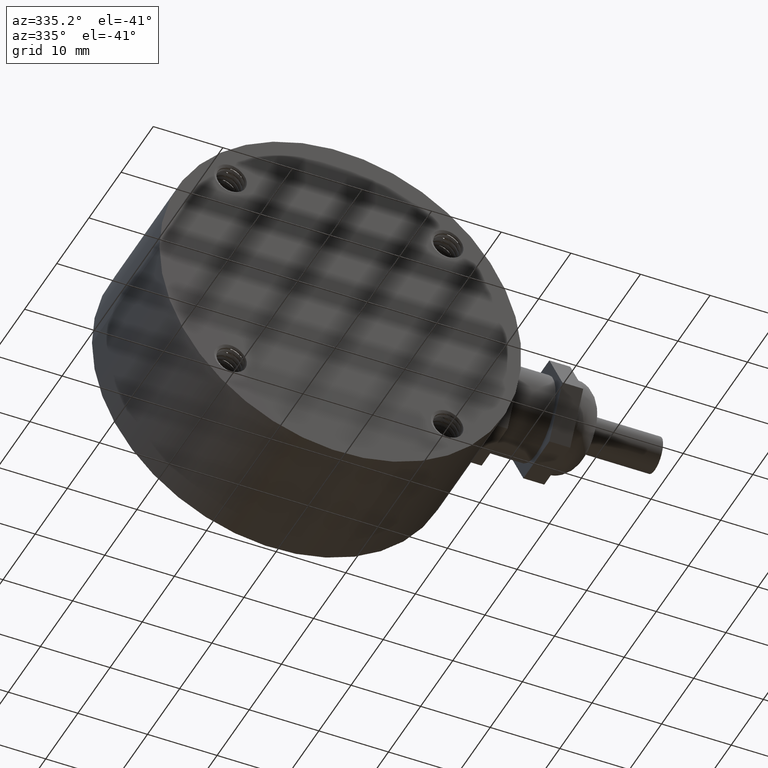
[diagram: clean part render]
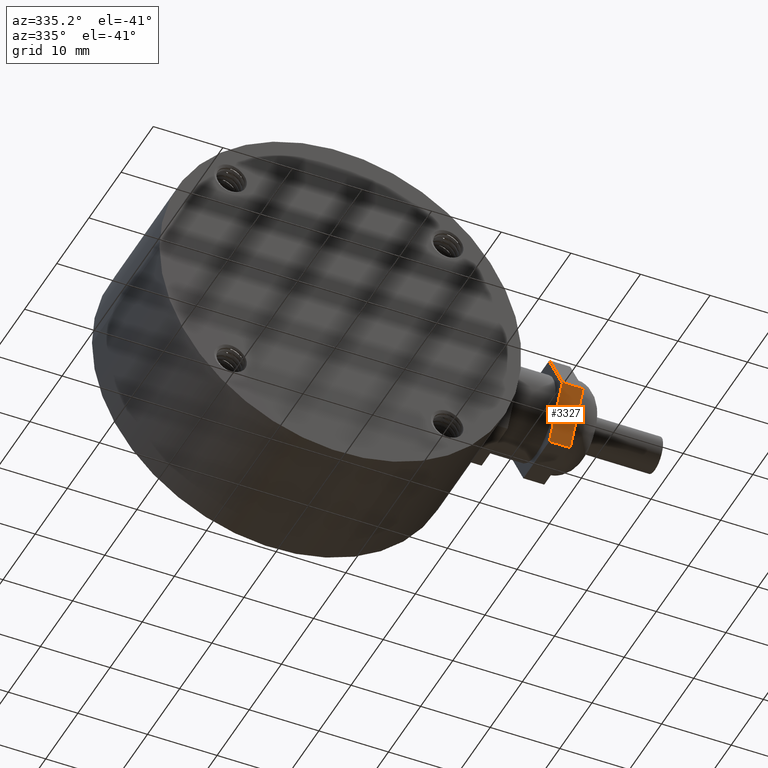
[diagram: same view with one face highlighted and labeled with its STEP entity id]
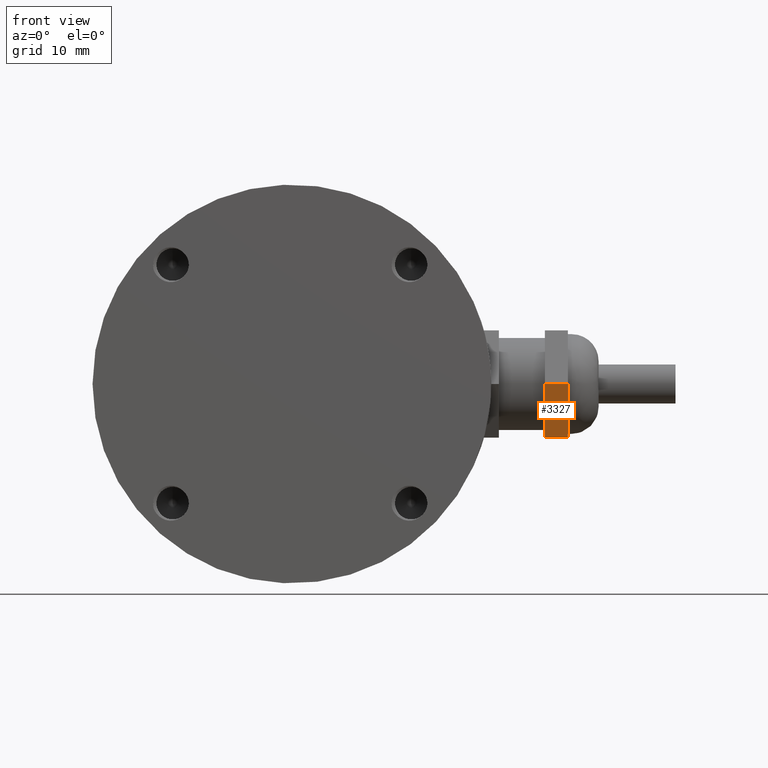
[diagram: same view with one face highlighted and labeled with its STEP entity id]
A machine part, auxiliary view. The second image highlights one B-rep face of the part: STEP entity #3327.
A second angle (front view) of the same face is appended — the face is thin or edge-on in the first view.
In plain terms, the highlighted planar face has unit normal (0, -0.866, -0.5).
Its self-contained STEP definition (entity closure, byte-faithful):
#329=PLANE('',#3564);
#359=FACE_OUTER_BOUND('',#574,.T.);
#574=EDGE_LOOP('',(#2124,#2125,#2126,#2127));
#793=LINE('',#4565,#998);
#798=LINE('',#4577,#1003);
#799=LINE('',#4579,#1004);
#800=LINE('',#4580,#1005);
#998=VECTOR('',#3836,10.);
#1003=VECTOR('',#3845,10.);
#1004=VECTOR('',#3846,10.);
#1005=VECTOR('',#3847,10.);
#1251=VERTEX_POINT('',#4561);
#1253=VERTEX_POINT('',#4564);
#1258=VERTEX_POINT('',#4576);
#1259=VERTEX_POINT('',#4578);
#1584=EDGE_CURVE('',#1253,#1251,#793,.T.);
#1590=EDGE_CURVE('',#1251,#1258,#798,.T.);
#1591=EDGE_CURVE('',#1259,#1258,#799,.T.);
#1592=EDGE_CURVE('',#1253,#1259,#800,.T.);
#2124=ORIENTED_EDGE('',*,*,#1584,.T.);
#2125=ORIENTED_EDGE('',*,*,#1590,.T.);
#2126=ORIENTED_EDGE('',*,*,#1591,.F.);
#2127=ORIENTED_EDGE('',*,*,#1592,.F.);
#3327=ADVANCED_FACE('',(#359),#329,.T.);
#3564=AXIS2_PLACEMENT_3D('',#4575,#3843,#3844);
#3836=DIRECTION('',(0.,0.499999999999999,-0.866025403784439));
#3843=DIRECTION('center_axis',(0.,-0.866025403784439,-0.499999999999999));
#3844=DIRECTION('ref_axis',(0.,0.499999999999999,-0.866025403784439));
#3845=DIRECTION('',(1.,0.,0.));
#3846=DIRECTION('',(0.,0.499999999999999,-0.866025403784439));
#3847=DIRECTION('',(1.,0.,0.));
#4561=CARTESIAN_POINT('',(9.,-4.04145188432739,-7.));
#4564=CARTESIAN_POINT('',(9.,-8.08290376865476,5.55111512312578E-15));
#4565=CARTESIAN_POINT('',(9.,-8.08290376865476,5.55111512312578E-15));
#4575=CARTESIAN_POINT('Origin',(9.,-8.08290376865476,5.55111512312578E-15));
#4576=CARTESIAN_POINT('',(12.,-4.04145188432739,-7.));
#4577=CARTESIAN_POINT('',(9.,-4.04145188432739,-7.));
#4578=CARTESIAN_POINT('',(12.,-8.08290376865476,5.55111512312578E-15));
#4579=CARTESIAN_POINT('',(12.,-8.08290376865476,5.55111512312578E-15));
#4580=CARTESIAN_POINT('',(9.,-8.08290376865476,5.55111512312578E-15));